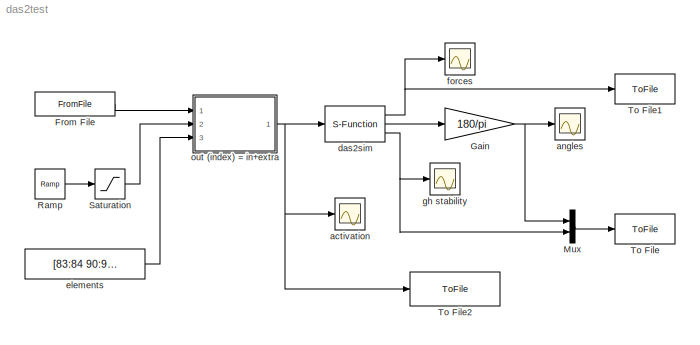
MODEL das2test
KIND model
BLOCK [FromFile] From File
  FileName = initactmin.mat
  SampleTime = 0.001
BLOCK [Gain] Gain
  Gain = 180/pi
  OutDataTypeMode = Inherit via internal rule
  ParameterDataTypeMode = Inherit via internal rule
  SaturateOnIntegerOverflow = off
BLOCK [Mux] Mux
  DisplayOption = bar
  Inputs = 2
  Ports = [2, 1]
BLOCK [Reference] Ramp  REF=simulink/Sources/Ramp
  FunctionWithSeparateData = off
  Ports = [0, 1]
  RTWMemSecDataConstants = Inherit from model
  RTWMemSecDataInternal = Inherit from model
  RTWMemSecDataParameters = Inherit from model
  RTWMemSecFuncExecute = Inherit from model
  RTWMemSecFuncInitTerm = Inherit from model
  ShowPortLabels = FromPortIcon
  SourceBlock = simulink/Sources/Ramp
  SourceType = Ramp
  SystemSampleTime = -1
  VectorParams1D = on
  X0 = 0
  slope = 0.2
  start = 1
BLOCK [Saturate] Saturation
  LowerLimit = 0
  UpperLimit = 1
BLOCK [ToFile] To File
  Decimation = 10
  Filename = output.mat
  MatrixName = output
BLOCK [ToFile] To File1
  Decimation = 10
  Filename = forces.mat
  MatrixName = forces
BLOCK [ToFile] To File2
  Decimation = 20
  Filename = activations.mat
  MatrixName = act
BLOCK [Scope] activation
  DataFormat = StructureWithTime
  Decimation = 10
  Floating = off
  NumInputPorts = 1
  Ports = [1]
  SampleTime = 0
  SaveName = ScopeData2
  YMax = 1.5
  YMin = -0.5
  ZoomMode = yonly
BLOCK [Scope] angles
  DataFormat = StructureWithTime
  Decimation = 10
  Floating = off
  NumInputPorts = 1
  Ports = [1]
  SampleTime = 0
  YMax = 175
  YMin = -25
  ZoomMode = yonly
BLOCK [S-Function] das2sim
  FunctionName = das2sim
  Ports = [1, 3]
BLOCK [Constant] elements
  Value = [83:84 90:92]
BLOCK [Scope] forces
  DataFormat = StructureWithTime
  Decimation = 10
  Floating = off
  NumInputPorts = 1
  Ports = [1]
  SampleTime = 0
  SaveName = ScopeData3
  YMax = 200
  YMin = -25
  ZoomMode = yonly
BLOCK [Scope] gh stability
  DataFormat = StructureWithTime
  Decimation = 10
  Floating = off
  NumInputPorts = 1
  Ports = [1]
  SampleTime = 0
  SaveName = ScopeData1
  YMax = 1.6
  YMin = 5.55112e-017
  ZoomMode = yonly
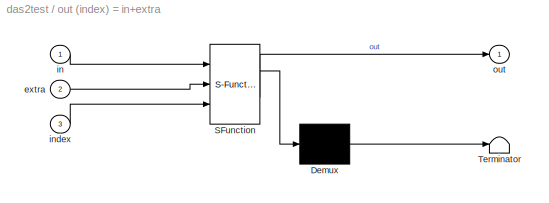
BLOCK [SubSystem] out (index) = in+extra
  FunctionWithSeparateData = off
  MaskDescription = Embedded MATLAB block
  MaskDisplay = disp('inject');
  MaskHideContents = off
  MaskIconFrame = on
  MaskIconOpaque = off
  MaskIconRotate = none
  MaskIconUnits = autoscale
  MaskSelfModifiable = on
  MaskType = Stateflow
  MinAlgLoopOccurrences = off
  Ports = [3, 1]
  RTWSystemCode = Auto
BLOCK [Demux] out (index) = in+extra/ Demux 
  Outputs = 1
  Ports = [1, 1]
BLOCK [S-Function] out (index) = in+extra/ SFunction 
  FunctionName = sf_sfun
  PortCounts = [3 2]
  Ports = [3, 2]
  Tag = Stateflow S-Function das2test 2
BLOCK [Terminator] out (index) = in+extra/ Terminator 
BLOCK [Inport] out (index) = in+extra/extra
  IconDisplay = Port number
  Port = 2
BLOCK [Inport] out (index) = in+extra/in
  IconDisplay = Port number
BLOCK [Inport] out (index) = in+extra/index
  IconDisplay = Port number
  Port = 3
BLOCK [Outport] out (index) = in+extra/out
  BusOutputAsStruct = off
  IconDisplay = Port number
LINE From File:1 -> out (index) = in+extra:1
NET Gain:1 -> Mux:1, angles:1
LINE Mux:1 -> To File:1
LINE Ramp:1 -> Saturation:1
LINE Saturation:1 -> out (index) = in+extra:2
NET das2sim:1 -> To File1:1, forces:1
LINE das2sim:2 -> Gain:1
NET das2sim:3 -> Mux:2, gh stability:1
LINE elements:1 -> out (index) = in+extra:3
LINE out (index) = in+extra/ Demux :1 -> out (index) = in+extra/ Terminator :1
LINE out (index) = in+extra/ SFunction :1 -> out (index) = in+extra/ Demux :1
LINE out (index) = in+extra/ SFunction :2 -> out (index) = in+extra/out:1
LINE out (index) = in+extra/extra:1 -> out (index) = in+extra/ SFunction :2
LINE out (index) = in+extra/in:1 -> out (index) = in+extra/ SFunction :1
LINE out (index) = in+extra/index:1 -> out (index) = in+extra/ SFunction :3
NET out (index) = in+extra:1 -> To File2:1, activation:1, das2sim:1
note: NET lines group one-source signal fan-out (src -> all destinations, sorted); 1:1 wires keep LINE
CHART out (index) = in+extra states=1 transitions=1
  STATE_LABEL 'eML_blk_kernel()'
